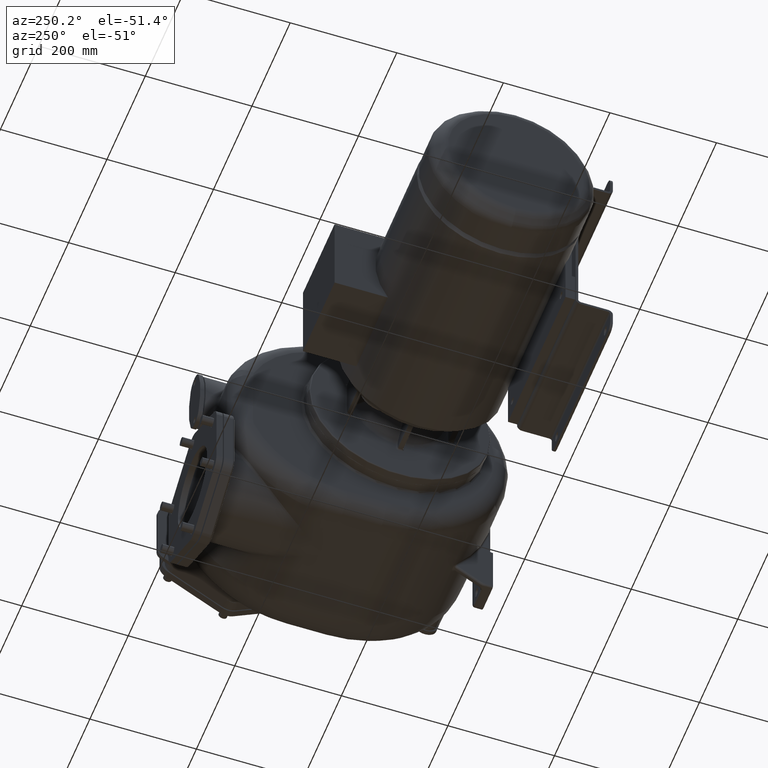
[diagram: clean part render]
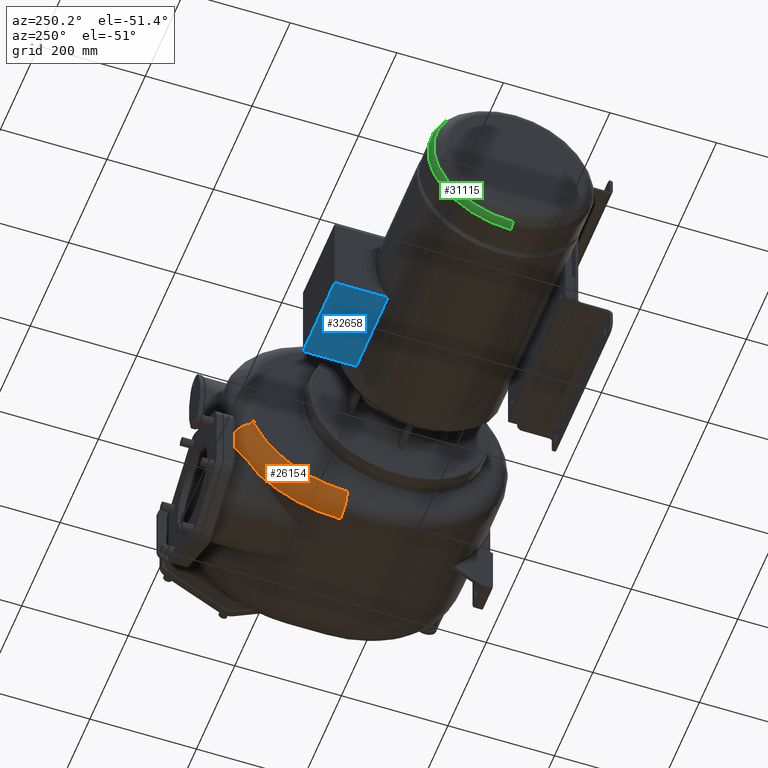
[diagram: same view with three faces highlighted in distinct colors, each labeled with its STEP entity id]
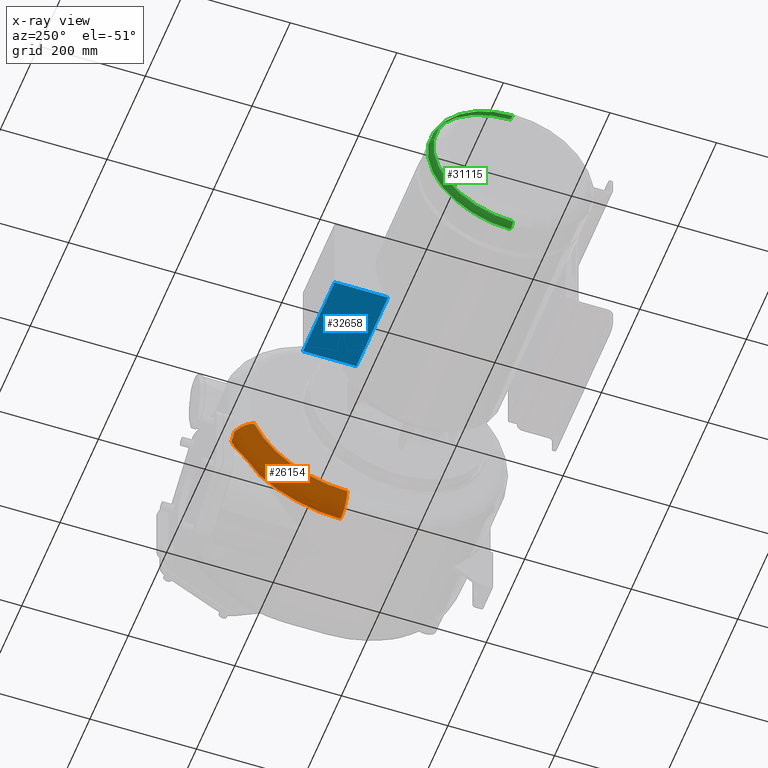
[diagram: x-ray of the same camera — body ghosted, the three highlighted faces saturated]
A machine part, auxiliary view with three faces highlighted in distinct colors.
The next image is the same camera in x-ray (body ghosted, the three faces saturated) — at least one of them is partly hidden behind the body in this view.
Their STEP definitions:

[orange] entity #26154 — the highlighted toroidal blend (fillet) surface has major radius 189 mm and minor (blend) radius 36 mm.
#7863=CARTESIAN_POINT('',(-1.347147906778E2,5.221246533940E2,
-1.105201104918E2));
#7864=CARTESIAN_POINT('',(-1.345352952413E2,5.221177261419E2,
-1.107479526142E2));
#7865=CARTESIAN_POINT('',(-1.341774020655E2,5.221042118900E2,
-1.111908359850E2));
#7866=CARTESIAN_POINT('',(-1.336446100776E2,5.220850954134E2,
-1.118164703324E2));
#7867=CARTESIAN_POINT('',(-1.331163752840E2,5.220670324047E2,
-1.124055647708E2));
#7868=CARTESIAN_POINT('',(-1.325929891708E2,5.220499694444E2,
-1.129595893692E2));
#7869=CARTESIAN_POINT('',(-1.320746666819E2,5.220338271045E2,
-1.134802502003E2));
#7870=CARTESIAN_POINT('',(-1.315615375596E2,5.220186119845E2,
-1.139689834999E2));
#7871=CARTESIAN_POINT('',(-1.310536240303E2,5.220043064722E2,
-1.144272912729E2));
#7872=CARTESIAN_POINT('',(-1.305508212319E2,5.219908836715E2,
-1.148566890618E2));
#7873=CARTESIAN_POINT('',(-1.300528913491E2,5.219783061422E2,
-1.152586992858E2));
#7874=CARTESIAN_POINT('',(-1.295596143305E2,5.219665323265E2,
-1.156347147760E2));
#7875=CARTESIAN_POINT('',(-1.290707008998E2,5.219555153138E2,
-1.159860794961E2));
#7876=CARTESIAN_POINT('',(-1.285856437627E2,5.219452001625E2,
-1.163141676395E2));
#7877=CARTESIAN_POINT('',(-1.281047063856E2,5.219355577167E2,
-1.166197159918E2));
#7878=CARTESIAN_POINT('',(-1.276283356287E2,5.219265719137E2,
-1.169033294042E2));
#7879=CARTESIAN_POINT('',(-1.271569733300E2,5.219182319934E2,
-1.171656252057E2));
#7880=CARTESIAN_POINT('',(-1.266903450833E2,5.219105195401E2,
-1.174075899881E2));
#7881=CARTESIAN_POINT('',(-1.262277175798E2,5.219034155705E2,
-1.176303215405E2));
#7882=CARTESIAN_POINT('',(-1.257682376043E2,5.218969047305E2,
-1.178348183061E2));
#7883=CARTESIAN_POINT('',(-1.253112719961E2,5.218909863467E2,
-1.180218132181E2));
#7884=CARTESIAN_POINT('',(-1.248570766860E2,5.218856124137E2,
-1.181917449089E2));
#7885=CARTESIAN_POINT('',(-1.244057495018E2,5.218807431162E2,
-1.183450968546E2));
#7886=CARTESIAN_POINT('',(-1.239573454850E2,5.218763554737E2,
-1.184823158349E2));
#7887=CARTESIAN_POINT('',(-1.235115724087E2,5.218724363630E2,
-1.186038956579E2));
#7888=CARTESIAN_POINT('',(-1.230680971479E2,5.218689855668E2,
-1.187102526101E2));
#7889=CARTESIAN_POINT('',(-1.226265048977E2,5.218660132795E2,
-1.188017363549E2));
#7890=CARTESIAN_POINT('',(-1.221864626140E2,5.218635431199E2,
-1.188785892975E2));
#7891=CARTESIAN_POINT('',(-1.217476753278E2,5.218616008918E2,
-1.189409882792E2));
#7892=CARTESIAN_POINT('',(-1.213099124629E2,5.218601351673E2,
-1.189892374315E2));
#7893=CARTESIAN_POINT('',(-1.208729021584E2,5.218590525573E2,
-1.190236573687E2));
#7894=CARTESIAN_POINT('',(-1.204363977235E2,5.218585217047E2,
-1.190440913526E2));
#7895=CARTESIAN_POINT('',(-1.201454335815E2,5.218580528372E2,
-1.190492140048E2));
#7896=CARTESIAN_POINT('',(-1.199999999951E2,5.218580422323E2,
-1.190492587704E2));
#7898=CARTESIAN_POINT('',(-1.2E2,4.917470542027E2,-9.800324331229E1));
#7899=DIRECTION('',(0.E0,-3.809695413349E-1,-9.245875883739E-1));
#7900=DIRECTION('',(-1.E0,0.E0,0.E0));
#7901=AXIS2_PLACEMENT_3D('',#7898,#7899,#7900);
#7903=CARTESIAN_POINT('',(-1.199999999999E2,4.692819418235E2,
-1.916357482412E2));
#7904=CARTESIAN_POINT('',(-1.201835947402E2,4.699083903726E2,
-1.910598048184E2));
#7905=CARTESIAN_POINT('',(-1.205418254951E2,4.711538595336E2,
-1.898978594244E2));
#7906=CARTESIAN_POINT('',(-1.210509405178E2,4.730008445016E2,
-1.881250388693E2));
#7907=CARTESIAN_POINT('',(-1.215299207307E2,4.748253244866E2,
-1.863252049335E2));
#7908=CARTESIAN_POINT('',(-1.219771530603E2,4.766267265732E2,
-1.845005983049E2));
#7909=CARTESIAN_POINT('',(-1.223911715291E2,4.784043234844E2,
-1.826537391782E2));
#7910=CARTESIAN_POINT('',(-1.227707413637E2,4.801576127839E2,
-1.807869831634E2));
#7911=CARTESIAN_POINT('',(-1.231147168818E2,4.818862557360E2,
-1.789025554038E2));
#7912=CARTESIAN_POINT('',(-1.234222102511E2,4.835899146736E2,
-1.770026630821E2));
#7913=CARTESIAN_POINT('',(-1.236923786069E2,4.852678961260E2,
-1.750899017246E2));
#7914=CARTESIAN_POINT('',(-1.239244763860E2,4.869194232719E2,
-1.731669668456E2));
#7915=CARTESIAN_POINT('',(-1.241180346763E2,4.885437244016E2,
-1.712365060117E2));
#7916=CARTESIAN_POINT('',(-1.242727037403E2,4.901399094097E2,
-1.693012712443E2));
#7917=CARTESIAN_POINT('',(-1.243882570846E2,4.917070742181E2,
-1.673639921918E2));
#7918=CARTESIAN_POINT('',(-1.244646984943E2,4.932442926446E2,
-1.654273507501E2));
#7919=CARTESIAN_POINT('',(-1.245021794525E2,4.947505058614E2,
-1.634941309467E2));
#7920=CARTESIAN_POINT('',(-1.245009893122E2,4.962246323719E2,
-1.615670881207E2));
#7921=CARTESIAN_POINT('',(-1.244615949248E2,4.976655668689E2,
-1.596489403690E2));
#7922=CARTESIAN_POINT('',(-1.243846257401E2,4.990721972989E2,
-1.577423518483E2));
#7923=CARTESIAN_POINT('',(-1.242708564675E2,5.004434396237E2,
-1.558498914613E2));
#7924=CARTESIAN_POINT('',(-1.241212039673E2,5.017781827042E2,
-1.539741171622E2));
#7925=CARTESIAN_POINT('',(-1.239367044496E2,5.030753972507E2,
-1.521174371562E2));
#7926=CARTESIAN_POINT('',(-1.237185197982E2,5.043341910552E2,
-1.502820251084E2));
#7927=CARTESIAN_POINT('',(-1.234679405747E2,5.055536680941E2,
-1.484700327431E2));
#7928=CARTESIAN_POINT('',(-1.231863199123E2,5.067329605069E2,
-1.466835750612E2));
#7929=CARTESIAN_POINT('',(-1.228751243242E2,5.078713262305E2,
-1.449245803184E2));
#7930=CARTESIAN_POINT('',(-1.225359611253E2,5.089680502908E2,
-1.431949521100E2));
#7931=CARTESIAN_POINT('',(-1.221704570068E2,5.100225263288E2,
-1.414964820492E2));
#7932=CARTESIAN_POINT('',(-1.217801360948E2,5.110347184396E2,
-1.398300703993E2));
#7933=CARTESIAN_POINT('',(-1.213666058611E2,5.120046029697E2,
-1.381965965784E2));
#7934=CARTESIAN_POINT('',(-1.209314567971E2,5.129321673280E2,
-1.365969401204E2));
#7935=CARTESIAN_POINT('',(-1.204762723878E2,5.138175057183E2,
-1.350318918219E2));
#7936=CARTESIAN_POINT('',(-1.201606324714E2,5.143795153861E2,
-1.340122426772E2));
#7937=CARTESIAN_POINT('',(-1.200000000009E2,5.146536070475E2,
-1.335083305445E2));
#7953=CARTESIAN_POINT('',(-1.56E2,3.17E2,-2.6E1));
#7954=DIRECTION('',(-1.E0,0.E0,0.E0));
#7955=DIRECTION('',(0.E0,9.245875883739E-1,-3.809695413349E-1));
#7956=AXIS2_PLACEMENT_3D('',#7953,#7954,#7955);
#8057=CARTESIAN_POINT('',(-1.2E2,3.17E2,-2.15E2));
#8058=DIRECTION('',(0.E0,-1.E0,0.E0));
#8059=DIRECTION('',(-1.E0,0.E0,0.E0));
#8060=AXIS2_PLACEMENT_3D('',#8057,#8058,#8059);
#8131=CARTESIAN_POINT('',(-1.2E2,3.17E2,-2.6E1));
#8132=DIRECTION('',(-1.E0,0.E0,0.E0));
#8133=DIRECTION('',(0.E0,6.768086911486E-1,-7.361589472292E-1));
#8134=AXIS2_PLACEMENT_3D('',#8131,#8132,#8133);
#8408=CARTESIAN_POINT('',(-1.2E2,3.17E2,-2.6E1));
#8409=DIRECTION('',(-1.E0,0.E0,0.E0));
#8410=DIRECTION('',(0.E0,9.104803493450E-1,-4.135523346043E-1));
#8411=AXIS2_PLACEMENT_3D('',#8408,#8409,#8410);
#16164=CARTESIAN_POINT('',(-1.56E2,4.917470542027E2,-9.800324331229E1));
#16165=CARTESIAN_POINT('',(-1.56E2,3.17E2,-2.15E2));
#16166=VERTEX_POINT('',#16164);
#16167=VERTEX_POINT('',#16165);
#16170=CARTESIAN_POINT('',(-1.2E2,3.169999999998E2,-2.51E2));
#16171=VERTEX_POINT('',#16170);
#16236=VERTEX_POINT('',#7903);
#16237=VERTEX_POINT('',#7937);
#16588=CARTESIAN_POINT('',(-1.199999999951E2,5.218580422323E2,
-1.190492587704E2));
#16589=VERTEX_POINT('',#16588);
#16591=VERTEX_POINT('',#7863);
#26135=CARTESIAN_POINT('',(-1.2E2,3.17E2,-2.6E1));
#26136=DIRECTION('',(-1.E0,0.E0,0.E0));
#26137=DIRECTION('',(0.E0,9.265879507636E-1,-3.760781428104E-1));
#26138=AXIS2_PLACEMENT_3D('',#26135,#26136,#26137);
#26139=TOROIDAL_SURFACE('',#26138,1.89E2,3.6E1);
#26140=ORIENTED_EDGE('',*,*,#25924,.F.);
#26141=ORIENTED_EDGE('',*,*,#26125,.F.);
#26143=ORIENTED_EDGE('',*,*,#26142,.T.);
#26145=ORIENTED_EDGE('',*,*,#26144,.T.);
#26147=ORIENTED_EDGE('',*,*,#26146,.F.);
#26149=ORIENTED_EDGE('',*,*,#26148,.T.);
#26151=ORIENTED_EDGE('',*,*,#26150,.F.);
#26152=EDGE_LOOP('',(#26140,#26141,#26143,#26145,#26147,#26149,#26151));
#26153=FACE_OUTER_BOUND('',#26152,.F.);
#26154=ADVANCED_FACE('',(#26153),#26139,.T.);
#7897=B_SPLINE_CURVE_WITH_KNOTS('',3,(#7863,#7864,#7865,#7866,#7867,#7868,#7869,
#7870,#7871,#7872,#7873,#7874,#7875,#7876,#7877,#7878,#7879,#7880,#7881,#7882,
#7883,#7884,#7885,#7886,#7887,#7888,#7889,#7890,#7891,#7892,#7893,#7894,#7895,
#7896),.UNSPECIFIED.,.F.,.F.,(4,1,1,1,1,1,1,1,1,1,1,1,1,1,1,1,1,1,1,1,1,1,1,1,1,
1,1,1,1,1,1,4),(0.E0,3.225806451613E-2,6.451612903226E-2,9.677419354839E-2,
1.290322580645E-1,1.612903225806E-1,1.935483870968E-1,2.258064516129E-1,
2.580645161290E-1,2.903225806452E-1,3.225806451613E-1,3.548387096774E-1,
3.870967741935E-1,4.193548387097E-1,4.516129032258E-1,4.838709677419E-1,
5.161290322581E-1,5.483870967742E-1,5.806451612903E-1,6.129032258065E-1,
6.451612903226E-1,6.774193548387E-1,7.096774193548E-1,7.419354838710E-1,
7.741935483871E-1,8.064516129032E-1,8.387096774194E-1,8.709677419355E-1,
9.032258064516E-1,9.354838709677E-1,9.677419354839E-1,1.E0),.UNSPECIFIED.);
#7902=CIRCLE('',#7901,3.6E1);
#7938=B_SPLINE_CURVE_WITH_KNOTS('',3,(#7903,#7904,#7905,#7906,#7907,#7908,#7909,
#7910,#7911,#7912,#7913,#7914,#7915,#7916,#7917,#7918,#7919,#7920,#7921,#7922,
#7923,#7924,#7925,#7926,#7927,#7928,#7929,#7930,#7931,#7932,#7933,#7934,#7935,
#7936,#7937),.UNSPECIFIED.,.F.,.F.,(4,1,1,1,1,1,1,1,1,1,1,1,1,1,1,1,1,1,1,1,1,1,
1,1,1,1,1,1,1,1,1,1,4),(0.E0,3.125E-2,6.25E-2,9.375E-2,1.25E-1,1.5625E-1,
1.875E-1,2.1875E-1,2.5E-1,2.8125E-1,3.125E-1,3.4375E-1,3.75E-1,4.0625E-1,
4.375E-1,4.6875E-1,5.E-1,5.3125E-1,5.625E-1,5.9375E-1,6.25E-1,6.5625E-1,
6.875E-1,7.1875E-1,7.5E-1,7.8125E-1,8.125E-1,8.4375E-1,8.75E-1,9.0625E-1,
9.375E-1,9.6875E-1,1.E0),.UNSPECIFIED.);
#7957=CIRCLE('',#7956,1.89E2);
#8061=CIRCLE('',#8060,3.6E1);
#8135=CIRCLE('',#8134,2.25E2);
#8412=CIRCLE('',#8411,2.25E2);
#25924=EDGE_CURVE('',#16591,#16589,#7897,.T.);
#26125=EDGE_CURVE('',#16166,#16591,#7902,.T.);
#26142=EDGE_CURVE('',#16166,#16167,#7957,.T.);
#26144=EDGE_CURVE('',#16167,#16171,#8061,.T.);
#26146=EDGE_CURVE('',#16236,#16171,#8135,.T.);
#26148=EDGE_CURVE('',#16236,#16237,#7938,.T.);
#26150=EDGE_CURVE('',#16589,#16237,#8412,.T.);

[blue] entity #32658 — the highlighted planar face has unit normal (0, 0, -1).
#12149=DIRECTION('',(1.E0,0.E0,0.E0));
#12150=VECTOR('',#12149,1.65E2);
#12151=CARTESIAN_POINT('',(-4.925E2,3.618104699939E2,-8.25E1));
#12152=LINE('',#12151,#12150);
#13242=DIRECTION('',(0.E0,1.E0,0.E0));
#13243=VECTOR('',#13242,1.001895300061E2);
#13244=CARTESIAN_POINT('',(-4.925E2,3.618104699939E2,-8.25E1));
#13245=LINE('',#13244,#13243);
#13246=DIRECTION('',(0.E0,1.E0,0.E0));
#13247=VECTOR('',#13246,1.001895300061E2);
#13248=CARTESIAN_POINT('',(-3.275E2,3.618104699939E2,-8.25E1));
#13249=LINE('',#13248,#13247);
#13262=DIRECTION('',(-1.E0,0.E0,0.E0));
#13263=VECTOR('',#13262,1.65E2);
#13264=CARTESIAN_POINT('',(-3.275E2,4.62E2,-8.25E1));
#13265=LINE('',#13264,#13263);
#17719=CARTESIAN_POINT('',(-4.925E2,4.62E2,-8.25E1));
#17721=VERTEX_POINT('',#17719);
#17725=CARTESIAN_POINT('',(-3.275E2,4.62E2,-8.25E1));
#17726=VERTEX_POINT('',#17725);
#17727=CARTESIAN_POINT('',(-4.925E2,3.618104699939E2,-8.25E1));
#17729=VERTEX_POINT('',#17727);
#17733=CARTESIAN_POINT('',(-3.275E2,3.618104699939E2,-8.25E1));
#17734=VERTEX_POINT('',#17733);
#32645=CARTESIAN_POINT('',(-3.275E2,2.3E2,-8.25E1));
#32646=DIRECTION('',(0.E0,0.E0,-1.E0));
#32647=DIRECTION('',(-1.E0,0.E0,0.E0));
#32648=AXIS2_PLACEMENT_3D('',#32645,#32646,#32647);
#32649=PLANE('',#32648);
#32650=ORIENTED_EDGE('',*,*,#31002,.T.);
#32652=ORIENTED_EDGE('',*,*,#32651,.T.);
#32654=ORIENTED_EDGE('',*,*,#32653,.T.);
#32655=ORIENTED_EDGE('',*,*,#32636,.F.);
#32656=EDGE_LOOP('',(#32650,#32652,#32654,#32655));
#32657=FACE_OUTER_BOUND('',#32656,.F.);
#32658=ADVANCED_FACE('',(#32657),#32649,.T.);
#31002=EDGE_CURVE('',#17729,#17734,#12152,.T.);
#32636=EDGE_CURVE('',#17729,#17721,#13245,.T.);
#32651=EDGE_CURVE('',#17734,#17726,#13249,.T.);
#32653=EDGE_CURVE('',#17726,#17721,#13265,.T.);

[green] entity #31115 — the highlighted toroidal blend (fillet) surface has major radius 135.5 mm and minor (blend) radius 20 mm.
#12228=CARTESIAN_POINT('',(-7.652157673827E2,2.3E2,0.E0));
#12229=DIRECTION('',(1.E0,0.E0,0.E0));
#12230=DIRECTION('',(0.E0,0.E0,-1.E0));
#12231=AXIS2_PLACEMENT_3D('',#12228,#12229,#12230);
#12242=CARTESIAN_POINT('',(-7.652157673827E2,2.3E2,-1.355E2));
#12243=DIRECTION('',(0.E0,1.E0,-1.664805446278E-13));
#12244=DIRECTION('',(0.E0,-1.662670001679E-13,-1.E0));
#12245=AXIS2_PLACEMENT_3D('',#12242,#12243,#12244);
#12247=CARTESIAN_POINT('',(-7.652157673827E2,2.3E2,1.355E2));
#12248=DIRECTION('',(0.E0,-1.E0,1.662107951272E-13));
#12249=DIRECTION('',(0.E0,1.662670001679E-13,1.E0));
#12250=AXIS2_PLACEMENT_3D('',#12247,#12248,#12249);
#12280=CARTESIAN_POINT('',(-7.793579048318E2,2.3E2,1.421087471520E-14));
#12281=DIRECTION('',(1.E0,0.E0,0.E0));
#12282=DIRECTION('',(0.E0,1.824192271778E-10,-1.E0));
#12283=AXIS2_PLACEMENT_3D('',#12280,#12281,#12282);
#17703=CARTESIAN_POINT('',(-7.652157673827E2,2.3E2,1.555E2));
#17704=CARTESIAN_POINT('',(-7.652157673827E2,2.3E2,-1.555E2));
#17705=VERTEX_POINT('',#17703);
#17706=VERTEX_POINT('',#17704);
#17707=CARTESIAN_POINT('',(-7.793579048318E2,2.299999999727E2,
1.496421337983E2));
#17708=CARTESIAN_POINT('',(-7.793579048318E2,2.300000000273E2,
-1.496421337983E2));
#17709=VERTEX_POINT('',#17707);
#17710=VERTEX_POINT('',#17708);
#31101=CARTESIAN_POINT('',(-7.652157673827E2,2.3E2,0.E0));
#31102=DIRECTION('',(1.E0,0.E0,0.E0));
#31103=DIRECTION('',(0.E0,-7.067122433571E-3,-9.999750275784E-1));
#31104=AXIS2_PLACEMENT_3D('',#31101,#31102,#31103);
#31105=TOROIDAL_SURFACE('',#31104,1.355E2,2.E1);
#31106=ORIENTED_EDGE('',*,*,#31091,.T.);
#31108=ORIENTED_EDGE('',*,*,#31107,.T.);
#31110=ORIENTED_EDGE('',*,*,#31109,.F.);
#31112=ORIENTED_EDGE('',*,*,#31111,.F.);
#31113=EDGE_LOOP('',(#31106,#31108,#31110,#31112));
#31114=FACE_OUTER_BOUND('',#31113,.F.);
#31115=ADVANCED_FACE('',(#31114),#31105,.T.);
#12232=CIRCLE('',#12231,1.555E2);
#12246=CIRCLE('',#12245,2.E1);
#12251=CIRCLE('',#12250,2.E1);
#12284=CIRCLE('',#12283,1.496421337983E2);
#31091=EDGE_CURVE('',#17706,#17705,#12232,.T.);
#31107=EDGE_CURVE('',#17705,#17709,#12251,.T.);
#31109=EDGE_CURVE('',#17710,#17709,#12284,.T.);
#31111=EDGE_CURVE('',#17706,#17710,#12246,.T.);